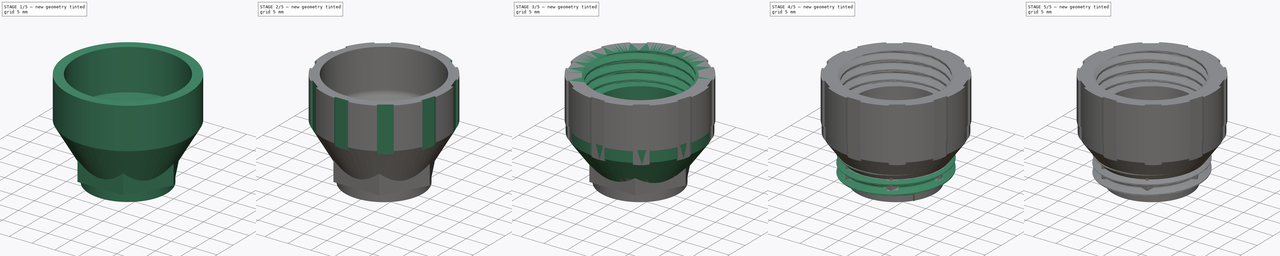
[diagram: build sequence overview — one tinted view per stage of 5, left to right]
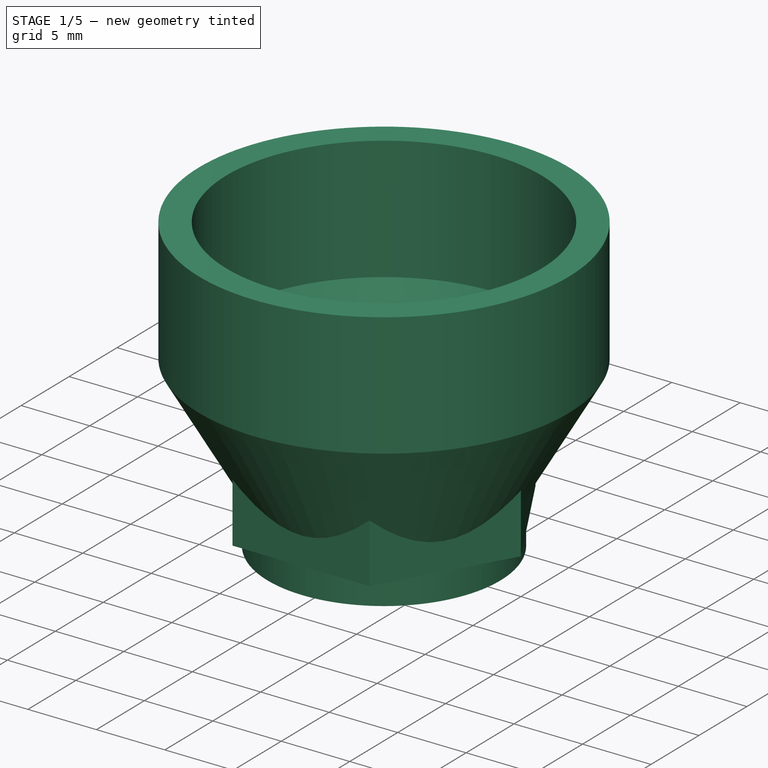
[diagram: stage 1 of 5 — iso view after this stage's code; geometry added in this stage tinted green]
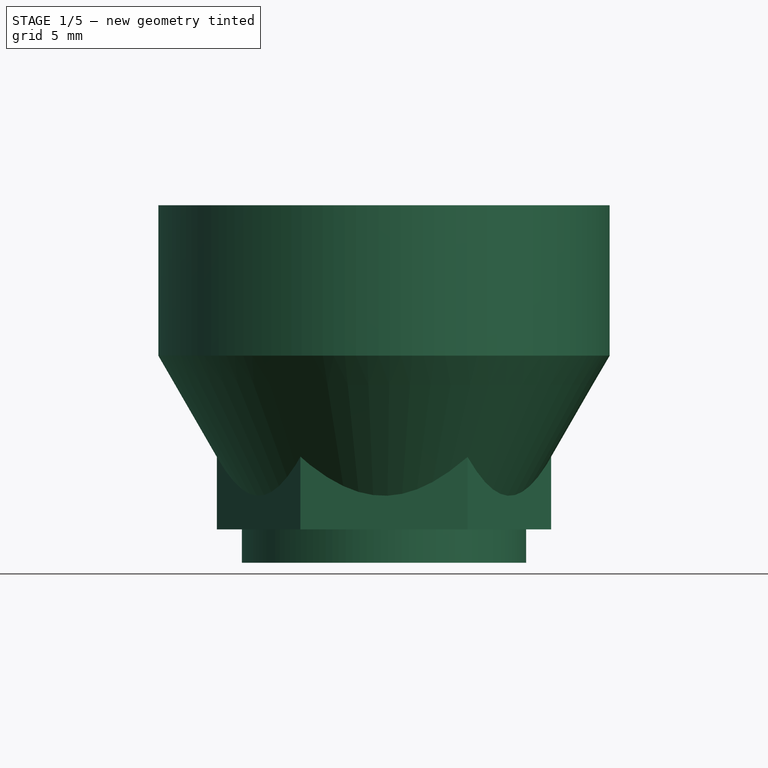
[diagram: stage 1 of 5 — front view after this stage's code; geometry added in this stage tinted green]
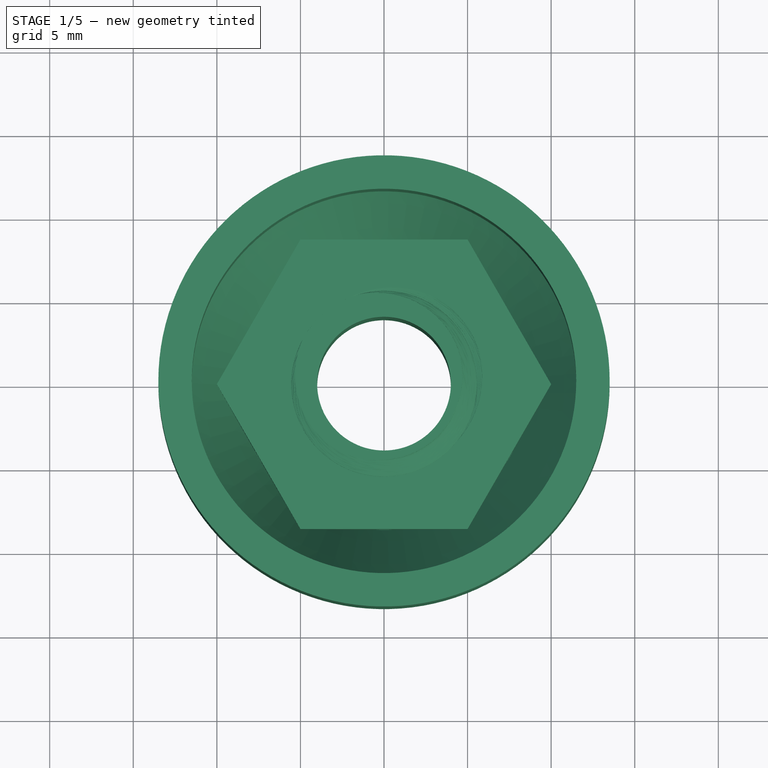
[diagram: stage 1 of 5 — top view after this stage's code; geometry added in this stage tinted green]
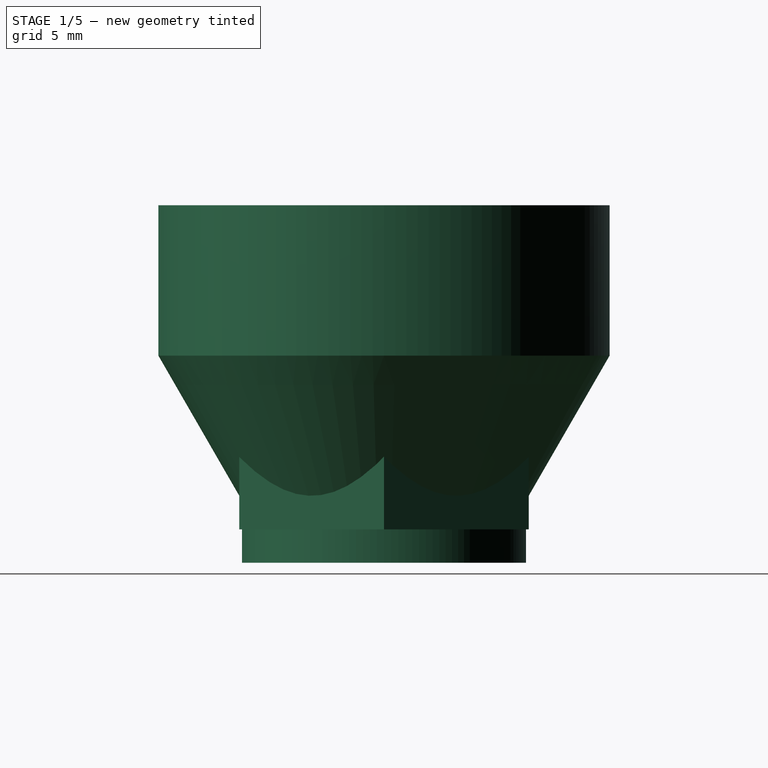
[diagram: stage 1 of 5 — right view after this stage's code; geometry added in this stage tinted green]
FCSTD DOCUMENT  (FreeCAD 0.21R33668 +26 (Git))
Label: power-cable-connector
License: All rights reserved
LicenseURL: http://en.wikipedia.org/wiki/All_rights_reserved
objects: Sketcher::SketchObject×13, App::Part×9, PartDesign::Body×8, PartDesign::Fillet×7, Part::Feature×6, PartDesign::Pad×6, PartDesign::Pocket×6, PartDesign::SubShapeBinder×4, Part::Part2DObjectPython×4, Part::Helix×4, PartDesign::PolarPattern×3, PartDesign::Chamfer×2, App::LinkGroup×2, PartDesign::Revolution×2, PartDesign::AdditivePipe×2, PartDesign::SubtractivePipe×2, Spreadsheet::Sheet×1, PartDesign::Thickness×1, PartDesign::Mirrored×1, PartDesign::FeatureBase×1
note: 100 computed .brp shape members not serialized (recipe doc carries the construction recipe); baked Part::Feature solids carry a one-line shape summary decoded from their .brp

FEATURE [PartDesign::SubShapeBinder] Binder002
  BindCopyOnChange = 0
  BindMode = 0
  ClaimChildren = false
  Context = -> Body004 [Binder002.]
  Fuse = false
  MakeFace = true
  OffsetFill = false
  OffsetIntersection = false
  OffsetJoinType = 0
  OffsetOpenResult = false
  PartialLoad = false
  Relative = false
  _Version = 2
FEATURE [Sketcher::SketchObject] Sketch006
  ExternalGeometry = -> [Binder002]
  FullyConstrained = true
  MapMode = 5
  Placement = pos=(0,0,0) rot=(1,0,0;1.5708rad)
  Support = -> [XZ_Plane010]
  expr: Constraints[16] = <<Values>>.Housing_Male_Thread_Length - 1
  expr: Constraints[19] = <<Values>>.Wall_size
  sketch-geometry (10):
    g0: LineSegment StartX=-7.5 StartY=0 StartZ=0 EndX=-13.5 EndY=10.3923 EndZ=0
    g1: LineSegment StartX=-7.5 StartY=0 StartZ=0 EndX=-5.5 EndY=0 EndZ=0
    g2: LineSegment StartX=-5.5 StartY=0 StartZ=0 EndX=-7.52073 EndY=3.5 EndZ=0
    g3: LineSegment StartX=-7.52073 StartY=3.5 StartZ=0 EndX=-5.52073 EndY=3.5 EndZ=0
    g4: LineSegment StartX=-5.52073 StartY=3.5 StartZ=0 EndX=-5.52073 EndY=5.5 EndZ=0
    g5: LineSegment StartX=-5.52073 StartY=5.5 StartZ=0 EndX=-8.67543 EndY=5.5 EndZ=0
    g6: LineSegment StartX=-8.67543 StartY=5.5 StartZ=0 EndX=-11.5 EndY=10.3923 EndZ=0
    g7: LineSegment StartX=-13.5 StartY=10.3923 StartZ=0 EndX=-13.5 EndY=19.3923 EndZ=0
    g8: LineSegment StartX=-13.5 StartY=19.3923 StartZ=0 EndX=-11.5 EndY=19.3923 EndZ=0
    g9: LineSegment StartX=-11.5 StartY=19.3923 StartZ=0 EndX=-11.5 EndY=10.3923 EndZ=0
  constraints (22):
    c: Coincident(g0,g-5)
    c: Coincident(g0,g-4)
    c: Coincident(g1,g0)
    c: Coincident(g1,g-6)
    c: Coincident(g2,g1)
    c: Coincident(g2,g-7)
    c: Coincident(g3,g2)
    c: Coincident(g3,g-8)
    c: Coincident(g4,g3)
    c: Coincident(g4,g-9)
    c: Coincident(g5,g4)
    c: Coincident(g5,g-10)
    c: Coincident(g6,g5)
    c: Coincident(g6,g-11)
    c: Coincident(g7,g0)
    c: Vertical(g7)
    c: DistanceY(g7,g7) = 9
    c: Coincident(g8,g7)
    c: Horizontal(g8)
    c: DistanceX(g8,g8) = 2
    c: Coincident(g9,g8)
    c: Coincident(g9,g6)
FEATURE [PartDesign::Revolution] Revolution001
  Angle = 360
  Axis = (0,2e-16,1)
  Base = (0,0,0)
  Placement = pos=(0,0,0) rot=(1,0,0;1.5708rad)
  Profile = -> Sketch006
  ReferenceAxis = -> Sketch006 [V_Axis]
FEATURE [PartDesign::Fillet] Fillet001
  Base = -> Revolution001 [Edge16,Edge13]
  BaseFeature = -> Revolution001
  Placement = pos=(0,0,0) rot=(1,0,0;1.5708rad)
  Radius = 0.5
  SupportTransform = false
  UseAllEdges = false
FEATURE [PartDesign::Body] Body004  label="Body_Female"
  Group = -> [Binder002,Sketch006,Revolution001,Fillet001,Fillet002,Fillet003,Sketch010,Pocket005,PolarPattern002,Fillet005,Fillet006]
  Origin = -> Origin010
  Tip = -> Fillet006
FEATURE [App::Part] Part003  label="Housing_F"
  Group = -> [Body005,Body004]
  Origin = -> Origin013
FEATURE [App::Part] Part001  label="Housing_Female"
  Group = -> [LinkGroup,Part003]
  Origin = -> Origin009
  Placement = pos=(0,0,41.6) rot=(0,1,0;3.14159rad)
FEATURE [Part::Part2DObjectPython] VThreadProfile002  # Draft 2D object (typed FeaturePython)
  Area = 78.7647
  Closed = true
  Continuity = C2
  Deviation = 0.1
  Height = 10
  Helix = Helix002
  Instructions = <same value as first occurrence — deduplicated (x4 in doc)>
  InternalOrExternal = 1
  MakeFace = true
  MinorDiameter = 9.2
  Parameterization = 1
  Pitch = 1.75
  Points = (66) [(4.57466,0.441106,0),(4.47538,0.871166,0),(4.34601,1.28924,0),(4.18395,1.69303,0),(3.98893,2.07989,0),(3.76166,2.44714,0),(3.50345,2.79212,0),+59 more]
  Presets = 22
  Quality = 11
  ThreadCount = 5.71429
  Variants = 0
  Version = 1.92
  external2S_data = <same value as first occurrence — deduplicated (x4 in doc)>
  external3S_data = <same value as first occurrence — deduplicated (x4 in doc)>
  external45_data = <same value as first occurrence — deduplicated (x4 in doc)>
  external_data = <same value as first occurrence — deduplicated (x4 in doc)>
  internal2S_data = <same value as first occurrence — deduplicated (x4 in doc)>
  internal3S_data = <same value as first occurrence — deduplicated (x4 in doc)>
  internal45_data = <same value as first occurrence — deduplicated (x4 in doc)>
  internal_data = <same value as first occurrence — deduplicated (x4 in doc)>
  preset_names = <blob: 3959 chars omitted>
  presets_data = <same value as first occurrence — deduplicated (x4 in doc)>
FEATURE [Part::Helix] Helix002
  Angle = 0
  AttacherType = Attacher::AttachEngine3D
  Height = 10
  LocalCoord = 0
  Pitch = 1.75
  Radius = 1
  SegmentLength = 1
  Style = 0
  expr: AttachmentOffset = VThreadProfile002.AttachmentOffset
  expr: Height = VThreadProfile002.ThreadCount * VThreadProfile002.Pitch
  expr: MapMode = VThreadProfile002.MapMode
  expr: MapPathParameter = VThreadProfile002.MapPathParameter
  expr: MapReversed = VThreadProfile002.MapReversed
  expr: Pitch = VThreadProfile002.Pitch
  expr: SegmentLength = 1
  expr: Support = VThreadProfile002.Support
FEATURE [PartDesign::AdditivePipe] AdditivePipe001
  AuxilleryCurvelinear = true
  AuxillerySpineTangent = false
  Binormal = (0,0,0)
  Mode = 2
  Profile = -> VThreadProfile002
  Spine = -> Helix002 [Edge1,Edge2,Edge3,Edge4,Edge5,Edge6]
  SpineTangent = false
  Transformation = 0
  Transition = 0
FEATURE [Sketcher::SketchObject] Sketch011
  FullyConstrained = true
  MapMode = 5
  Placement = pos=(0,0,0) rot=(1,0,0;3.14159rad)
  Support = -> [AdditivePipe001]
  sketch-geometry (1):
    g0: Circle CenterX=0 CenterY=0 CenterZ=0 NormalX=0 NormalY=0 NormalZ=1 AngleXU=0 Radius=8.5
  constraints (2):
    c: Coincident(g0,g-1)
    c: Diameter(g0) = 17
FEATURE [PartDesign::Pad] Pad004
  BaseFeature = -> AdditivePipe001
  Direction = (0,0,-1)
  Length = 2
  Length2 = 10
  Profile = -> Sketch011
  ReferenceAxis = -> Sketch011 [N_Axis]
  Type = 0
FEATURE [Sketcher::SketchObject] Sketch012
  FullyConstrained = true
  MapMode = 5
  Placement = pos=(0,-1e-16,-2) rot=(1,0,0;3.14159rad)
  Support = -> [Pad004]
  sketch-geometry (1):
    g0: Circle CenterX=0 CenterY=0 CenterZ=0 NormalX=0 NormalY=0 NormalZ=1 AngleXU=0 Radius=4
  constraints (2):
    c: Coincident(g0,g-1)
    c: Diameter(g0) = 8
FEATURE [PartDesign::Pocket] Pocket006
  BaseFeature = -> Pad004
  Direction = (0,0,1)
  Length = 5
  Length2 = 5
  Profile = -> Sketch012
  ReferenceAxis = -> Sketch012 [N_Axis]
  Type = 1
FEATURE [PartDesign::Body] Body006  label="Body_Gland"
  Group = -> [VThreadProfile002,Helix002,AdditivePipe001,Sketch011,Pad004,Sketch012,Pocket006]
  Origin = -> Origin015
  Tip = -> Pocket006
FEATURE [Sketcher::SketchObject] Sketch013
  FullyConstrained = true
  MapMode = 5
  Support = -> [XY_Plane016]
  sketch-geometry (7):
    g0: LineSegment StartX=-5 StartY=8.66025 StartZ=0 EndX=-10 EndY=1.00041e-10 EndZ=0
    g1: LineSegment StartX=-10 StartY=1.00041e-10 StartZ=0 EndX=-5 EndY=-8.66025 EndZ=0
    g2: LineSegment StartX=-5 StartY=-8.66025 StartZ=0 EndX=5 EndY=-8.66025 EndZ=0
    g3: LineSegment StartX=5 StartY=-8.66025 StartZ=0 EndX=10 EndY=0 EndZ=0
    g4: LineSegment StartX=10 StartY=0 StartZ=0 EndX=5 EndY=8.66025 EndZ=0
    g5: LineSegment StartX=5 StartY=8.66025 StartZ=0 EndX=-5 EndY=8.66025 EndZ=0
    g6: Circle CenterX=-1e-16 CenterY=0 CenterZ=0 NormalX=0 NormalY=0 NormalZ=1 AngleXU=0 Radius=10
  constraints (16):
    c: Coincident(g0,g1)
    c: Coincident(g1,g2)
    c: Coincident(g2,g3)
    c: Coincident(g3,g4)
    c: Coincident(g4,g5)
    c: Coincident(g5,g0)
    c: Equal(g0, g1-g5) x5
    c: PointOnObject(g0,g6)
    c: PointOnObject(g1,g6)
    c: PointOnObject(g2,g6)
    c: PointOnObject(g3,g6)
    c: PointOnObject(g4,g6)
    c: PointOnObject(g5,g6)
    c: Coincident(g6,g-1)
    c: PointOnObject(g3,g-1)
    c: Diameter(g6) = 20
FEATURE [PartDesign::Pad] Pad005
  Direction = (0,0,1)
  Length = 8
  Length2 = 10
  Profile = -> Sketch013
  ReferenceAxis = -> Sketch013 [N_Axis]
  Type = 0
FEATURE [Part::Part2DObjectPython] VThreadProfile003  # Draft 2D object (typed FeaturePython)
  Area = 94.5514
  Closed = true
  Continuity = C2
  Deviation = 0.1
  Height = 10
  Helix = Helix003
  Instructions = <same value as first occurrence — deduplicated (x4 in doc)>
  InternalOrExternal = 0
  MakeFace = true
  MapMode = 11
  MinorDiameter = 10.106
  Parameterization = 1
  Pitch = 1.75
  Placement = pos=(0,0,8) rot=(0.707107,-0.707107,0;3.14159rad)
  Points = (66) [(5.02967,0.48498,0),(4.9599,0.965482,0),(4.84434,1.43707,0),(4.68405,1.89539,0),(4.48051,2.33621,0),(4.2356,2.75545,0),(3.95158,3.14926,0),+59 more]
  Presets = 22
  Quality = 11
  ThreadCount = 5.71429
  Variants = 0
  Version = 1.92
  external2S_data = <same value as first occurrence — deduplicated (x4 in doc)>
  external3S_data = <same value as first occurrence — deduplicated (x4 in doc)>
  external45_data = <same value as first occurrence — deduplicated (x4 in doc)>
  external_data = <same value as first occurrence — deduplicated (x4 in doc)>
  internal2S_data = <same value as first occurrence — deduplicated (x4 in doc)>
  internal3S_data = <same value as first occurrence — deduplicated (x4 in doc)>
  internal45_data = <same value as first occurrence — deduplicated (x4 in doc)>
  internal_data = <same value as first occurrence — deduplicated (x4 in doc)>
  preset_names = <blob: 3959 chars omitted>
  presets_data = <same value as first occurrence — deduplicated (x4 in doc)>
FEATURE [Part::Helix] Helix003
  Angle = 0
  AttacherType = Attacher::AttachEngine3D
  Height = 10
  LocalCoord = 0
  MapMode = 11
  Pitch = 1.75
  Placement = pos=(0,0,8) rot=(0.707107,-0.707107,0;3.14159rad)
  Radius = 1
  SegmentLength = 1
  Style = 0
  expr: AttachmentOffset = VThreadProfile003.AttachmentOffset
  expr: Height = VThreadProfile003.ThreadCount * VThreadProfile003.Pitch
  expr: MapMode = VThreadProfile003.MapMode
  expr: MapPathParameter = VThreadProfile003.MapPathParameter
  expr: MapReversed = VThreadProfile003.MapReversed
  expr: Pitch = VThreadProfile003.Pitch
  expr: SegmentLength = 1
  expr: Support = VThreadProfile003.Support
FEATURE [PartDesign::SubtractivePipe] SubtractivePipe001
  AuxilleryCurvelinear = true
  AuxillerySpineTangent = false
  BaseFeature = -> Pad005
  Binormal = (0,0,0)
  Mode = 2
  Profile = -> VThreadProfile003
  Spine = -> Helix003
  SpineTangent = false
  Transformation = 0
  Transition = 0
FEATURE [PartDesign::Body] Body007  label="Body_Nut"
  Group = -> [Sketch013,Pad005,VThreadProfile003,Helix003,SubtractivePipe001]
  Origin = -> Origin016
  Tip = -> SubtractivePipe001
FEATURE [App::Part] Part004  label="Cable_Gland"
  Group = -> [Body006,Body007]
  Origin = -> Origin014
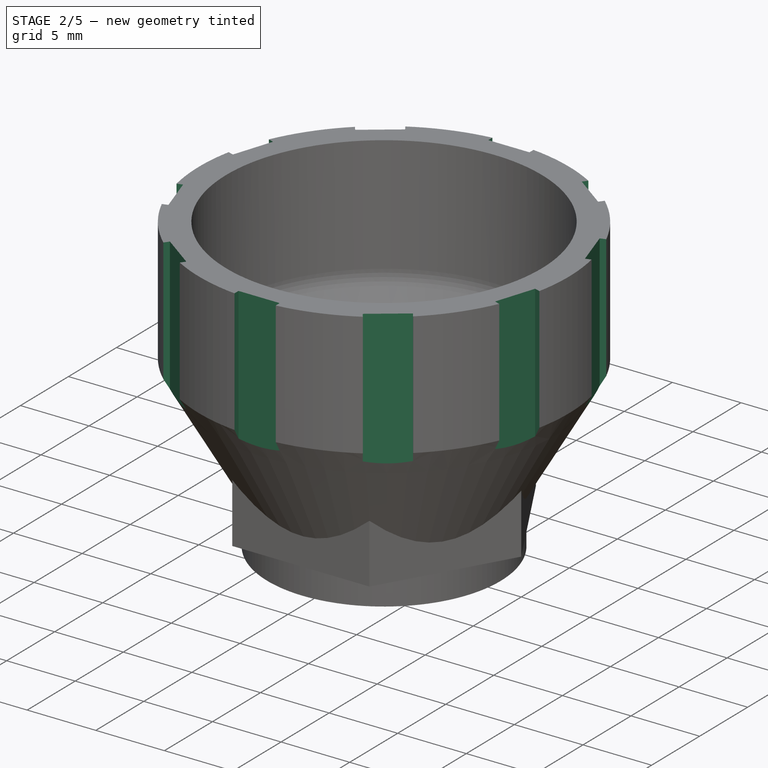
[diagram: stage 2 of 5 — iso view after this stage's code; geometry added in this stage tinted green]
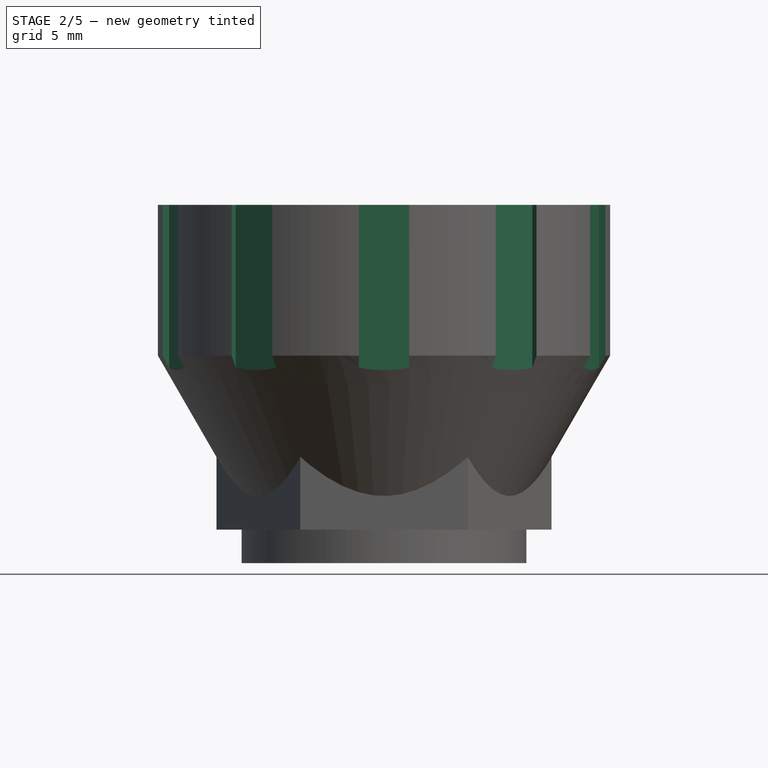
[diagram: stage 2 of 5 — front view after this stage's code; geometry added in this stage tinted green]
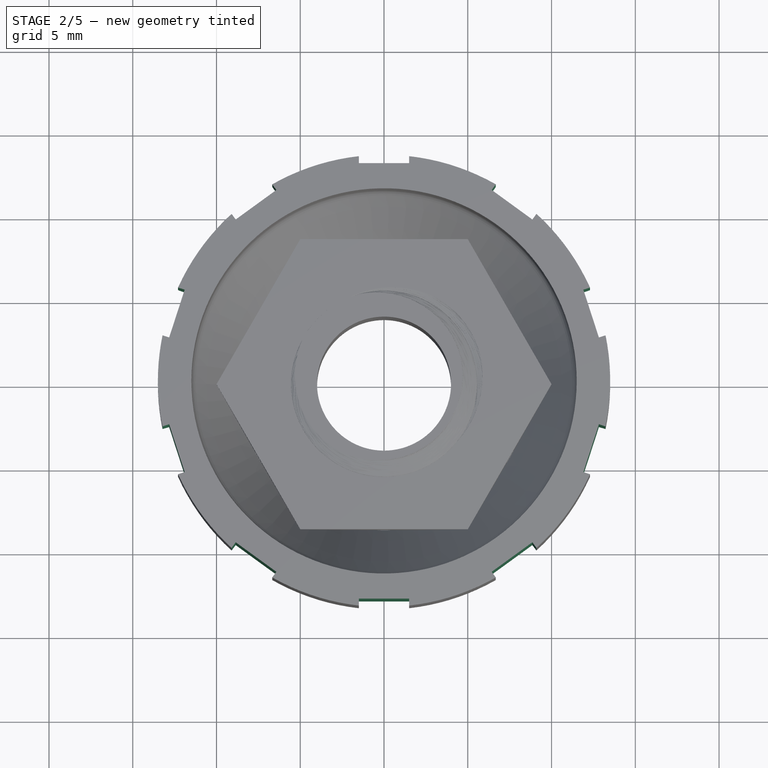
[diagram: stage 2 of 5 — top view after this stage's code; geometry added in this stage tinted green]
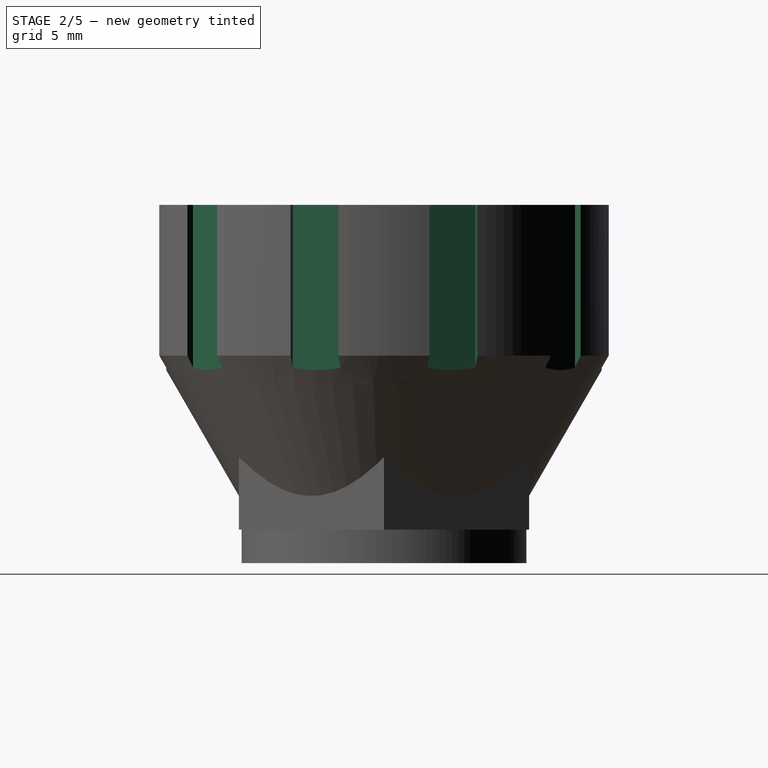
[diagram: stage 2 of 5 — right view after this stage's code; geometry added in this stage tinted green]
FEATURE [PartDesign::Fillet] Fillet002
  Base = -> Fillet001 [Edge7]
  BaseFeature = -> Fillet001
  Placement = pos=(0,0,0) rot=(1,0,0;1.5708rad)
  Radius = 2
  SupportTransform = false
  UseAllEdges = false
FEATURE [PartDesign::Fillet] Fillet003
  Base = -> Fillet002 [Edge13]
  BaseFeature = -> Fillet002
  Placement = pos=(0,0,0) rot=(1,0,0;1.5708rad)
  Radius = 1.5
  SupportTransform = false
  UseAllEdges = false
FEATURE [PartDesign::Body] Body005  label="Body_Female_Thread"
  Group = -> [Binder003,Sketch008,Pad003,VThreadProfile001,Helix001,SubtractivePipe,Sketch009,Pocket004,PolarPattern001]
  Origin = -> Origin011
  Tip = -> PolarPattern001
FEATURE [Sketcher::SketchObject] Sketch010
  ExternalGeometry = -> [Fillet003]
  FullyConstrained = true
  MapMode = 5
  Placement = pos=(0,4.3e-15,19.3923) rot=(0,0,1;3.14159rad)
  Support = -> [Fillet003]
  sketch-geometry (5):
    g0: LineSegment StartX=-4 StartY=13.5 StartZ=0 EndX=4 EndY=13.5 EndZ=0
    g1: LineSegment StartX=-1.5 StartY=14 StartZ=0 EndX=1.5 EndY=14 EndZ=0
    g2: LineSegment StartX=1.5 StartY=14 StartZ=0 EndX=1.5 EndY=13 EndZ=0
    g3: LineSegment StartX=1.5 StartY=13 StartZ=0 EndX=-1.5 EndY=13 EndZ=0
    g4: LineSegment StartX=-1.5 StartY=13 StartZ=0 EndX=-1.5 EndY=14 EndZ=0
  constraints (13):
    c: DistanceX(g0,g0) = 8
    c: Symmetric(g0,g0,g-2)
    c: Tangent(g0,g-3)
    c: Coincident(g1,g2)
    c: Coincident(g2,g3)
    c: Coincident(g3,g4)
    c: Coincident(g4,g1)
    c: Horizontal(g3)
    c: Vertical(g2)
    c: DistanceX(g1,g1) = 3
    c: DistanceY(g4,g4) = 1
    c: Symmetric(g1,g3,g0)
    c: Symmetric(g1,g1,g-2)
FEATURE [PartDesign::Pocket] Pocket005
  BaseFeature = -> Fillet003
  Direction = (0,-2e-16,-1)
  Length = 5
  Length2 = 5
  Placement = pos=(0,0,0) rot=(1,0,0;1.5708rad)
  Profile = -> Sketch010
  ReferenceAxis = -> Sketch010 [N_Axis]
  Type = 1
FEATURE [PartDesign::PolarPattern] PolarPattern002
  Angle = 360
  Axis = -> Sketch010 [N_Axis]
  BaseFeature = -> Pocket005
  Occurrences = 10
  Originals = -> [Pocket005]
  Placement = pos=(0,0,0) rot=(1,0,0;1.5708rad)
FEATURE [PartDesign::Fillet] Fillet005
  Base = -> PolarPattern002 [Edge136,Edge134]
  BaseFeature = -> PolarPattern002
  Placement = pos=(0,0,0) rot=(1,0,0;1.5708rad)
  Radius = 0.5
  SupportTransform = false
  UseAllEdges = false
FEATURE [PartDesign::Fillet] Fillet006
  Base = -> Fillet005 [Edge7]
  BaseFeature = -> Fillet005
  Placement = pos=(0,0,0) rot=(1,0,0;1.5708rad)
  Radius = 2
  SupportTransform = false
  UseAllEdges = false
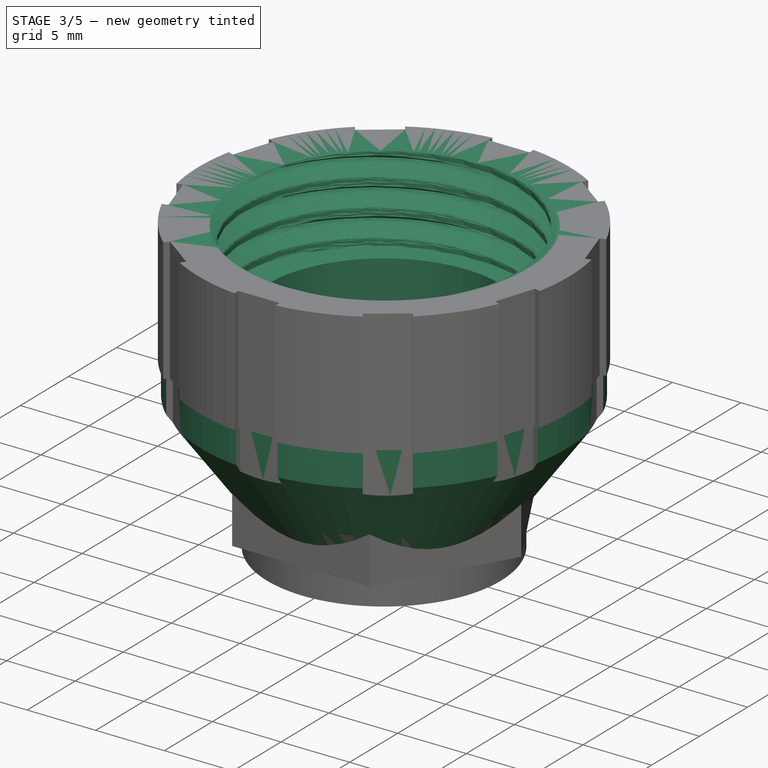
[diagram: stage 3 of 5 — iso view after this stage's code; geometry added in this stage tinted green]
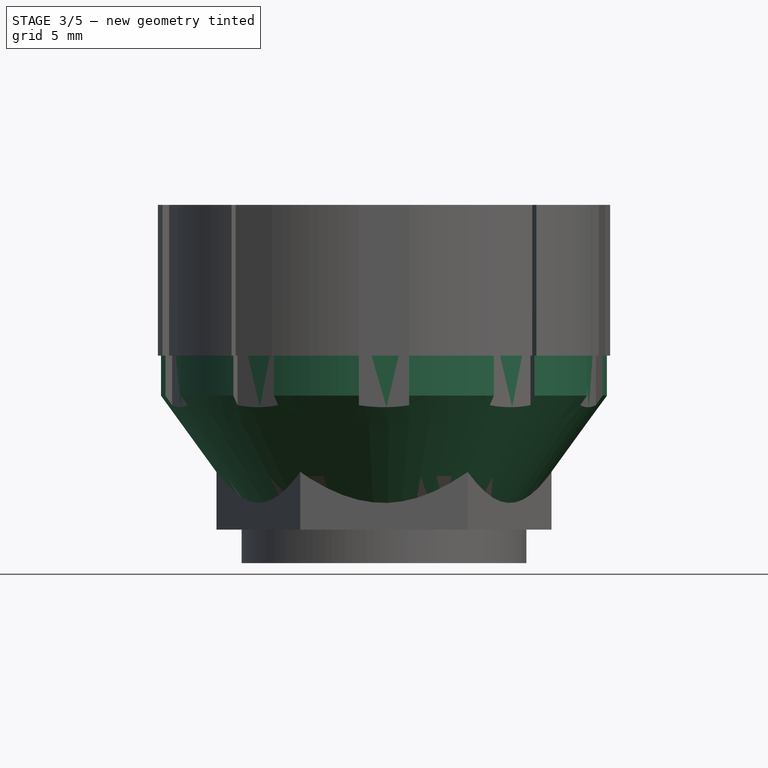
[diagram: stage 3 of 5 — front view after this stage's code; geometry added in this stage tinted green]
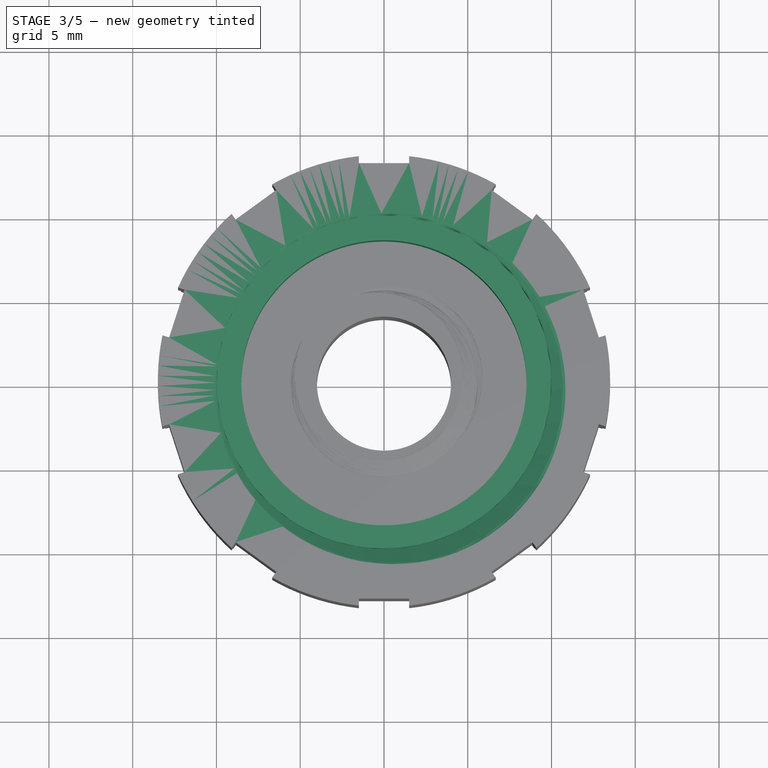
[diagram: stage 3 of 5 — top view after this stage's code; geometry added in this stage tinted green]
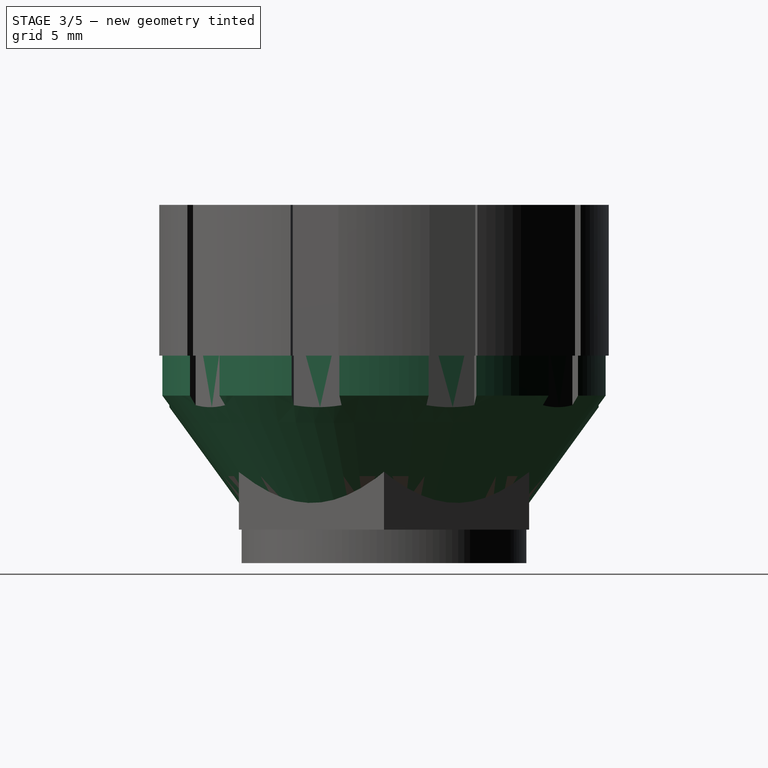
[diagram: stage 3 of 5 — right view after this stage's code; geometry added in this stage tinted green]
FEATURE [PartDesign::Body] Body001  label="Body_M"
  Group = -> [Clone]
  Origin = -> Origin005
  Placement = pos=(0,0,36) rot=(0.999985,0.005555,0;3.14159rad)
  Tip = -> Clone
FEATURE [App::Part] ASSEMBLY001  label="XT30-M"
  Group = -> [XT30UPB_M,Body001]
  Origin = -> Origin003
  Placement = pos=(0,0,32.5) rot=(90,0,0;3.14159rad)
FEATURE [App::LinkGroup] LinkGroup  label="XT30_M"
  ElementList = -> [Body001,ASSEMBLY001]
  LinkMode = 1
  Placement = pos=(0,0,41.5) rot=(0,1,0;3.14159rad)
FEATURE [App::LinkGroup] LinkGroup001  label="XT30_F"
  ElementList = -> [ASSEMBLY,Body]
  LinkMode = 0
  Placement = pos=(0,0,5.5) rot=(0,0,1;0rad)
  expr: .Placement.Base.z = <<Values>>.Housing_Bottom_Stopper_Distance
FEATURE [PartDesign::SubShapeBinder] Binder001
  BindCopyOnChange = 0
  BindMode = 0
  ClaimChildren = false
  Context = -> Part [Body002.Binder001.]
  Fuse = false
  MakeFace = true
  OffsetFill = false
  OffsetIntersection = false
  OffsetJoinType = 0
  OffsetOpenResult = false
  PartialLoad = false
  Relative = true
  Support = -> [Body[Chamfer001.Face4,Chamfer001.Face1,Chamfer001.Face10]]
  _Version = 2
FEATURE [Sketcher::SketchObject] Sketch003
  FullyConstrained = true
  MapMode = 5
  Placement = pos=(0,0,0) rot=(1,0,0;1.5708rad)
  Support = -> [XZ_Plane007]
  expr: Constraints[13] = <<Values>>.Wall_size
  expr: Constraints[1] = <<Values>>.Housing_Cable_Hole_Radius
  expr: Constraints[23] = <<Values>>.Wall_size
  expr: Constraints[2] = <<Values>>.Housing_Male_Length
  expr: Constraints[7] = <<Values>>.Wall_size
  sketch-geometry (13):
    g0: LineSegment StartX=-5.5 StartY=0 StartZ=0 EndX=-7.52073 EndY=3.5 EndZ=0
    g1: GeomPoint X=-11.3123 Y=13 Z=0
    g2: LineSegment StartX=-5.5 StartY=0 StartZ=0 EndX=0 EndY=0 EndZ=0
    g3: LineSegment StartX=-11.3123 StartY=13 StartZ=0 EndX=-13.3123 EndY=13 EndZ=0
    g4: LineSegment StartX=-13.3123 StartY=13 StartZ=0 EndX=-13.3123 EndY=8 EndZ=0
    g5: LineSegment StartX=-13.3123 StartY=8 StartZ=0 EndX=-7.5 EndY=0 EndZ=0
    g6: LineSegment StartX=-7.5 StartY=0 StartZ=0 EndX=-5.5 EndY=0 EndZ=0
    g7: LineSegment StartX=-11.3123 StartY=13 StartZ=0 EndX=-8.51234 EndY=13 EndZ=0
    g8: LineSegment StartX=-8.51234 StartY=13 StartZ=0 EndX=-8.51234 EndY=8 EndZ=0
    g9: LineSegment StartX=-7.52073 StartY=3.5 StartZ=0 EndX=-5.52073 EndY=3.5 EndZ=0
    g10: LineSegment StartX=-8.51234 StartY=5.5 StartZ=0 EndX=-5.52073 EndY=5.5 EndZ=0
    g11: LineSegment StartX=-5.52073 StartY=5.5 StartZ=0 EndX=-5.52073 EndY=3.5 EndZ=0
    g12: LineSegment StartX=-8.51234 StartY=8 StartZ=0 EndX=-8.51234 EndY=5.5 EndZ=0
  constraints (36):
    c: PointOnObject(g0,g-1)
    c: DistanceX(g0,g-1) = 5.5
    c: DistanceY(g-1,g1) = 13
    c: Coincident(g2,g0)
    c: Coincident(g2,g-1)
    c: Angle(g2,g0) = 2.0944
    c: Horizontal(g3)
    c: DistanceX(g3,g3) = 2
    c: Coincident(g4,g3)
    c: Vertical(g4)
    c: Coincident(g6,g5)
    c: Coincident(g6,g0)
    c: PointOnObject(g5,g-1)
    c: DistanceX(g6,g6) = 2
    c: Horizontal(g7)
    c: Coincident(g7,g3)
    c: Coincident(g3,g1)
    c: Coincident(g8,g7)
    c: Vertical(g8)
    c: Horizontal(g9)
    c: DistanceX(g9,g9) = 2
    c: DistanceY(g2,g9) = 3.5
    c: Horizontal(g10)
    c: DistanceY(g9,g10) = 2
    c: Coincident(g11,g10)
    c: Coincident(g11,g9)
    c: Vertical(g11)
    c: Coincident(g0,g9)
    c: Horizontal(g8,g4)
    c: DistanceX(g7,g7) = 2.8
    c: Coincident(g5,g4)
    c: DistanceY(g4,g4) = 5
    c: DistanceX(g10,g8) = 0
    c: Coincident(g12,g8)
    c: Coincident(g12,g10)
    c: Angle(g-1,g5) = 2.19911
FEATURE [PartDesign::Revolution] Revolution
  Angle = 360
  Axis = (0,-2e-16,1)
  Base = (0,0,0)
  Placement = pos=(0,0,0) rot=(1,0,0;1.5708rad)
  Profile = -> Sketch003
  ReferenceAxis = -> Sketch003 [V_Axis]
FEATURE [Sketcher::SketchObject] Sketch005
  ExternalGeometry = -> [Revolution]
  FullyConstrained = true
  MapMode = 5
  Placement = pos=(0,-2.9e-15,13) rot=(0,0,1;3.14159rad)
  Support = -> [Revolution]
  sketch-geometry (5):
    g0: LineSegment StartX=-1.5 StartY=13.8123 StartZ=0 EndX=1.5 EndY=13.8123 EndZ=0
    g1: LineSegment StartX=1.5 StartY=13.8123 StartZ=0 EndX=1.5 EndY=12.8123 EndZ=0
    g2: LineSegment StartX=1.5 StartY=12.8123 StartZ=0 EndX=-1.5 EndY=12.8123 EndZ=0
    g3: LineSegment StartX=-1.5 StartY=12.8123 StartZ=0 EndX=-1.5 EndY=13.8123 EndZ=0
    g4: LineSegment StartX=-4 StartY=13.3123 StartZ=0 EndX=4 EndY=13.3123 EndZ=0
  constraints (13):
    c: Coincident(g0,g1)
    c: Coincident(g1,g2)
    c: Coincident(g2,g3)
    c: Coincident(g3,g0)
    c: Horizontal(g2)
    c: Vertical(g1)
    c: Symmetric(g0,g0,g-2)
    c: DistanceX(g0,g0) = 3
    c: DistanceY(g3,g3) = 1
    c: Tangent(g4,g-3)
    c: DistanceX(g4,g4) = 8
    c: Symmetric(g0,g2,g4)
    c: Symmetric(g4,g4,g-2)
FEATURE [PartDesign::Pocket] Pocket002
  BaseFeature = -> Revolution
  Direction = (0,2e-16,-1)
  Length = 5
  Length2 = 5
  Placement = pos=(0,0,0) rot=(1,0,0;1.5708rad)
  Profile = -> Sketch005
  ReferenceAxis = -> Sketch005 [N_Axis]
  Type = 1
FEATURE [PartDesign::PolarPattern] PolarPattern
  Angle = 360
  Axis = -> Sketch005 [N_Axis]
  BaseFeature = -> Pocket002
  Occurrences = 10
  Originals = -> [Pocket002]
  Placement = pos=(0,0,0) rot=(1,0,0;1.5708rad)
FEATURE [PartDesign::Body] Body003  label="Body_Male_Thread"
  Group = -> [VThreadProfile,Helix,AdditivePipe,Sketch007,Pocket003]
  Origin = -> Origin008
  Placement = pos=(0,0,13) rot=(0,0,1;0rad)
  Tip = -> Pocket003
  expr: .Placement.Base.z = <<Values>>.Housing_Male_Thread_Bottom_Z
FEATURE [PartDesign::SubShapeBinder] Binder003
  BindCopyOnChange = 0
  BindMode = 0
  ClaimChildren = false
  Context = -> Part001 [Body005.Binder003.]
  Fuse = false
  MakeFace = true
  OffsetFill = false
  OffsetIntersection = false
  OffsetJoinType = 0
  OffsetOpenResult = false
  PartialLoad = false
  Relative = true
  Support = -> [Body004[Revolution001.Face3]]
  _Version = 2
FEATURE [Sketcher::SketchObject] Sketch008
  ExternalGeometry = -> [Binder003]
  FullyConstrained = true
  MapMode = 5
  Placement = pos=(0,4.3e-15,19.3923) rot=(0,0,1;0rad)
  Support = -> [Binder003]
  sketch-geometry (1):
    g0: Circle CenterX=0 CenterY=0 CenterZ=0 NormalX=0 NormalY=0 NormalZ=1 AngleXU=0 Radius=13.5
  constraints (2):
    c: Coincident(g0,g-3)
    c: Equal(g0,g-3)
FEATURE [PartDesign::Pad] Pad003
  Direction = (0,2e-16,1)
  Length = 9
  Length2 = 10
  Profile = -> Sketch008
  ReferenceAxis = -> Sketch008 [N_Axis]
  Reversed = true
  Type = 0
  expr: Length = <<Values>>.Housing_Male_Thread_Length - 1
FEATURE [Part::Part2DObjectPython] VThreadProfile001  # Draft 2D object (typed FeaturePython)
  Area = 345.67
  Closed = true
  Continuity = C2
  Deviation = 0.1
  Height = 10
  Helix = Helix001
  Instructions = <same value as first occurrence — deduplicated (x4 in doc)>
  InternalOrExternal = 0
  MakeFace = true
  MapMode = 5
  MinorDiameter = 20
  Parameterization = 1
  Pitch = 2
  Placement = pos=(0,5.9e-15,19.3923) rot=(0,1,0;3.14159rad)
  Points = (66) [(9.95383,0.959786,0),(9.81576,1.91071,0),(9.58706,2.84399,0),(9.26984,3.75102,0),(8.86702,4.62341,0),(8.38234,5.45311,0),(7.82026,6.23246,0),+59 more]
  Presets = 0
  Quality = 11
  Support = -> [Pad003]
  ThreadCount = 5
  Variants = 0
  Version = 1.92
  external2S_data = <same value as first occurrence — deduplicated (x4 in doc)>
  external3S_data = <same value as first occurrence — deduplicated (x4 in doc)>
  external45_data = <same value as first occurrence — deduplicated (x4 in doc)>
  external_data = <same value as first occurrence — deduplicated (x4 in doc)>
  internal2S_data = <same value as first occurrence — deduplicated (x4 in doc)>
  internal3S_data = <same value as first occurrence — deduplicated (x4 in doc)>
  internal45_data = <same value as first occurrence — deduplicated (x4 in doc)>
  internal_data = <same value as first occurrence — deduplicated (x4 in doc)>
  preset_names = <blob: 3959 chars omitted>
  presets_data = <same value as first occurrence — deduplicated (x4 in doc)>
  expr: Height = <<Values>>.Housing_Male_Thread_Length
  expr: MinorDiameter = <<Values>>.Housing_Thread_Min_Diameter
FEATURE [Part::Helix] Helix001
  Angle = 0
  AttacherType = Attacher::AttachEngine3D
  Height = 10
  LocalCoord = 0
  MapMode = 5
  Pitch = 2
  Placement = pos=(0,5.9e-15,19.3923) rot=(0,1,0;3.14159rad)
  Radius = 1
  SegmentLength = 1
  Style = 0
  Support = -> [Pad003]
  expr: AttachmentOffset = VThreadProfile001.AttachmentOffset
  expr: Height = VThreadProfile001.ThreadCount * VThreadProfile001.Pitch
  expr: MapMode = VThreadProfile001.MapMode
  expr: MapPathParameter = VThreadProfile001.MapPathParameter
  expr: MapReversed = VThreadProfile001.MapReversed
  expr: Pitch = VThreadProfile001.Pitch
  expr: SegmentLength = 1
  expr: Support = VThreadProfile001.Support
FEATURE [PartDesign::SubtractivePipe] SubtractivePipe
  AuxilleryCurvelinear = true
  AuxillerySpineTangent = false
  BaseFeature = -> Pad003
  Binormal = (0,0,0)
  Mode = 2
  Profile = -> VThreadProfile001
  Spine = -> Helix001 [Edge1,Edge2,Edge3,Edge4,Edge5]
  SpineTangent = false
  Transformation = 0
  Transition = 0
FEATURE [PartDesign::Body] Body002  label="Body_Male"
  Group = -> [Binder001,Sketch003,Revolution,Sketch005,Pocket002,PolarPattern,Fillet,Fillet004]
  Origin = -> Origin007
  Tip = -> Fillet004
FEATURE [App::Part] Part002  label="Housing_M"
  Group = -> [Body002,Body003]
  Origin = -> Origin012
FEATURE [App::Part] Part  label="Housing_Male"
  Group = -> [LinkGroup001,Part002]
  Origin = -> Origin006
FEATURE [Sketcher::SketchObject] Sketch009
  ExternalGeometry = -> [SubtractivePipe]
  FullyConstrained = true
  MapMode = 5
  Placement = pos=(0,5.9e-15,19.3923) rot=(0,0,1;0rad)
  Support = -> [SubtractivePipe]
  sketch-geometry (5):
    g0: LineSegment StartX=-1.5 StartY=14 StartZ=0 EndX=1.5 EndY=14 EndZ=0
    g1: LineSegment StartX=1.5 StartY=14 StartZ=0 EndX=1.5 EndY=13 EndZ=0
    g2: LineSegment StartX=1.5 StartY=13 StartZ=0 EndX=-1.5 EndY=13 EndZ=0
    g3: LineSegment StartX=-1.5 StartY=13 StartZ=0 EndX=-1.5 EndY=14 EndZ=0
    g4: LineSegment StartX=-4 StartY=13.5 StartZ=0 EndX=4 EndY=13.5 EndZ=0
  constraints (13):
    c: Coincident(g0,g1)
    c: Coincident(g1,g2)
    c: Coincident(g2,g3)
    c: Coincident(g3,g0)
    c: Horizontal(g2)
    c: Vertical(g1)
    c: Symmetric(g4,g4,g-2)
    c: DistanceX(g4,g4) = 8
    c: Tangent(g4,g-3)
    c: DistanceY(g3,g3) = 1
    c: Symmetric(g0,g2,g4)
    c: DistanceX(g0,g0) = 3
    c: Symmetric(g0,g0,g-2)
FEATURE [PartDesign::Pocket] Pocket004
  BaseFeature = -> SubtractivePipe
  Direction = (0,-3e-16,-1)
  Length = 5
  Length2 = 5
  Profile = -> Sketch009
  ReferenceAxis = -> Sketch009 [N_Axis]
  Type = 1
FEATURE [PartDesign::PolarPattern] PolarPattern001
  Angle = 360
  Axis = -> Sketch009 [N_Axis]
  BaseFeature = -> Pocket004
  Occurrences = 10
  Originals = -> [Pocket004]
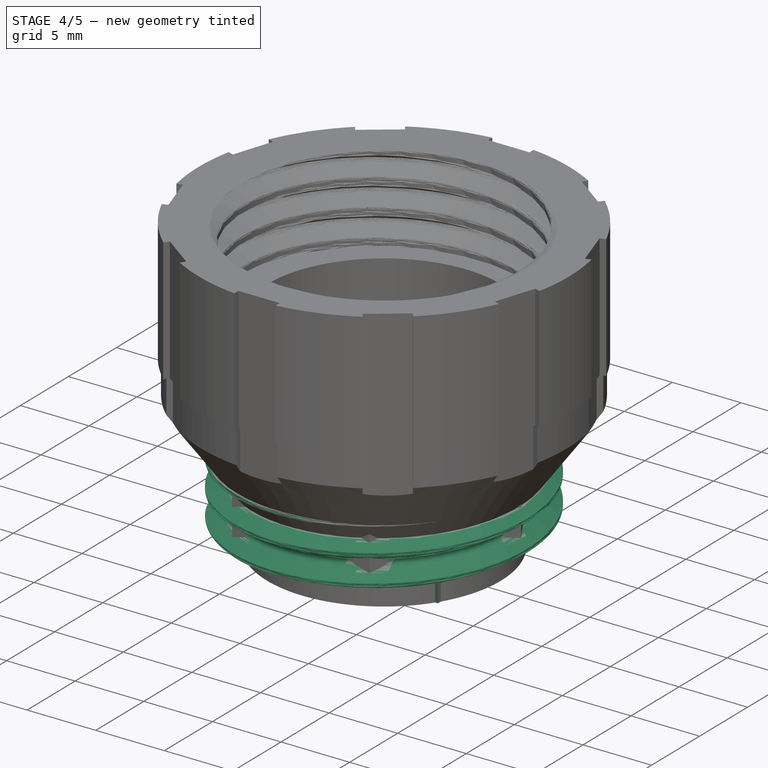
[diagram: stage 4 of 5 — iso view after this stage's code; geometry added in this stage tinted green]
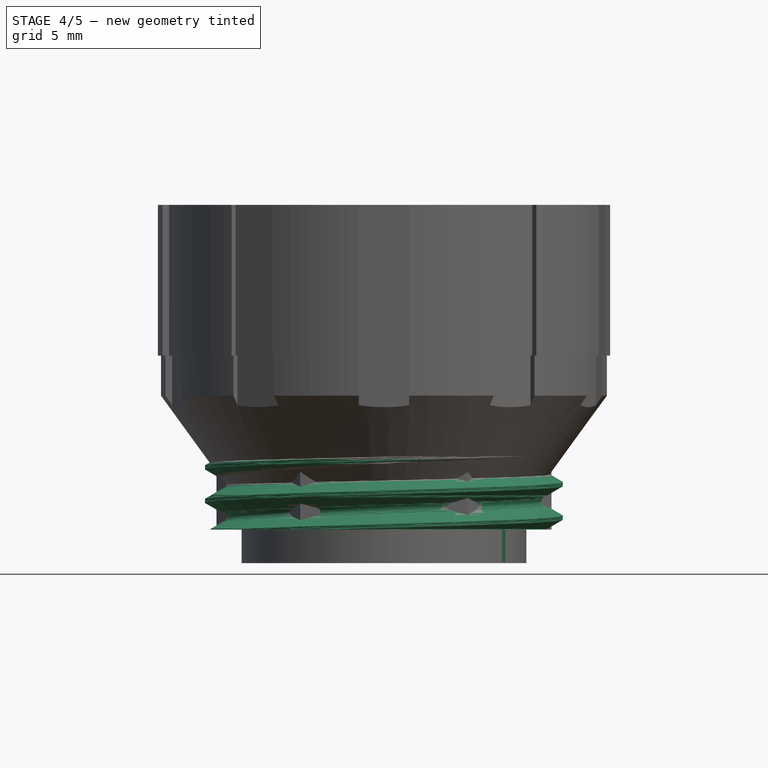
[diagram: stage 4 of 5 — front view after this stage's code; geometry added in this stage tinted green]
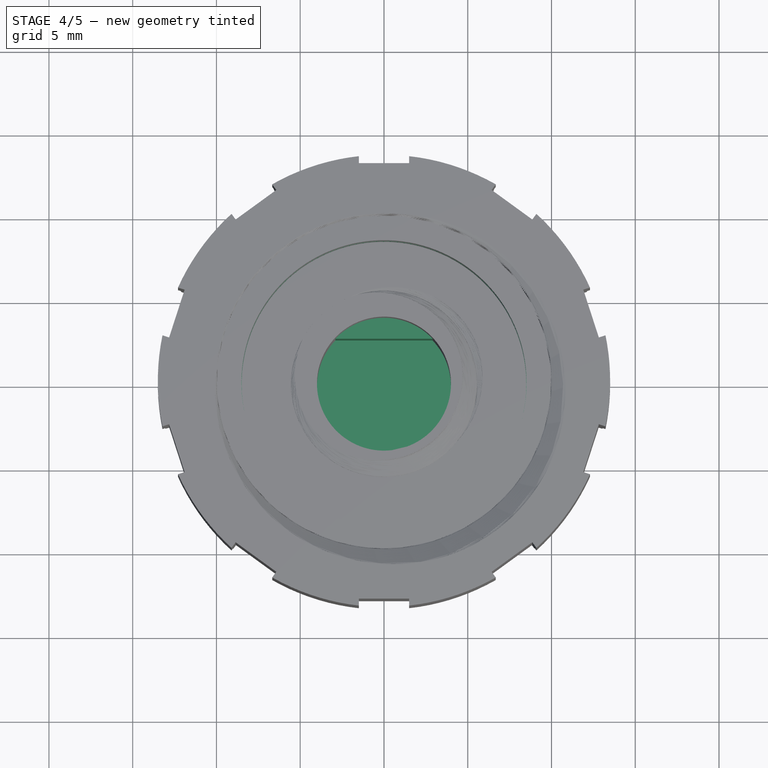
[diagram: stage 4 of 5 — top view after this stage's code; geometry added in this stage tinted green]
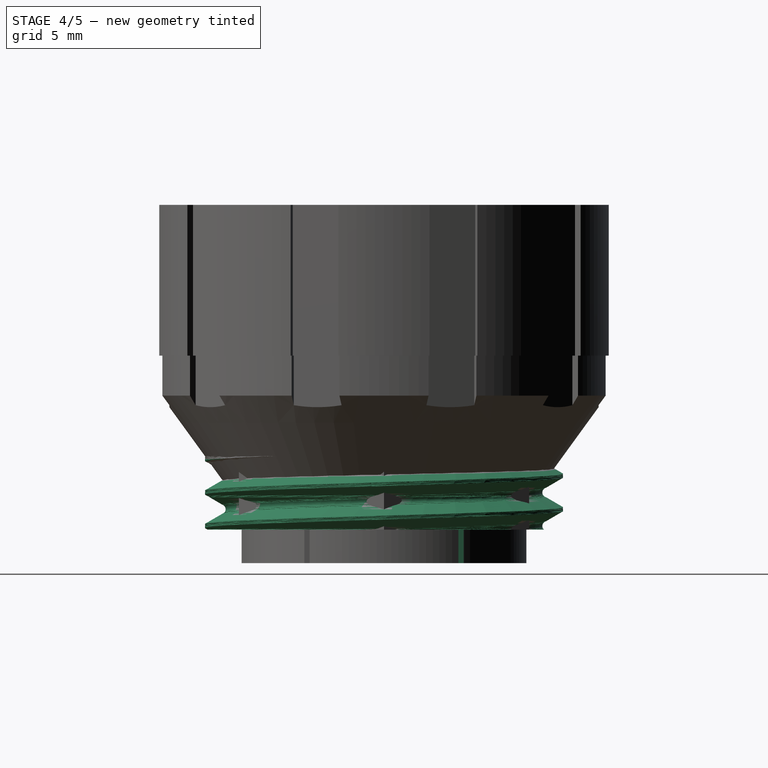
[diagram: stage 4 of 5 — right view after this stage's code; geometry added in this stage tinted green]
FEATURE [Part::Feature] Part__Feature  label="XT30UPB-F"
  shape: bbox 2.4 x 2.4 x 11.3 mm, 9 faces (baked)
FEATURE [Part::Feature] Part__Feature001  label="XT30UPB-F001"
  shape: bbox 2.4 x 2.4 x 11.3 mm, 9 faces (baked)
FEATURE [Part::Feature] Part__Feature002  label="XT30UPB-F002"
  shape: bbox 10.36 x 5.53 x 9.6 mm, 149 faces (baked)
FEATURE [App::Part] XT30UPB_F  label="XT30UPB-F003"
  Group = -> [Part__Feature,Part__Feature001,Part__Feature002]
  Origin = -> Origin
FEATURE [App::Part] ASSEMBLY  label="XT30-F"
  Group = -> [XT30UPB_F]
  Origin = -> Origin001
  Placement = pos=(0,0,5) rot=(1,0,0;0rad)
FEATURE [Part::Feature] Part__Feature003  label="XT30UPB-M"
  shape: bbox 3.129 x 3.508 x 12.2 mm, 22 faces (baked)
FEATURE [Part::Feature] Part__Feature004  label="XT30UPB-M001"
  shape: bbox 3.129 x 3.508 x 12.2 mm, 22 faces (baked)
FEATURE [Part::Feature] Part__Feature005  label="XT30UPB-M002"
  shape: bbox 10.36 x 5.53 x 10.7 mm, 111 faces (baked)
FEATURE [App::Part] XT30UPB_M  label="XT30UPB-M003"
  Group = -> [Part__Feature003,Part__Feature004,Part__Feature005]
  Origin = -> Origin002
FEATURE [PartDesign::SubShapeBinder] Binder
  BindCopyOnChange = 0
  BindMode = 2
  ClaimChildren = false
  Fuse = false
  MakeFace = true
  OffsetFill = false
  OffsetIntersection = false
  OffsetJoinType = 0
  OffsetOpenResult = false
  PartialLoad = false
  Relative = true
  _Version = 2
FEATURE [Sketcher::SketchObject] Sketch
  ExternalGeometry = -> [Binder]
  FullyConstrained = true
  MapMode = 5
  Support = -> [XY_Plane004]
  expr: Constraints[1] = <<Values>>.Tolerance
  expr: Constraints[2] = <<Values>>.Tolerance
  expr: Constraints[5] = <<Values>>.Tolerance
  expr: Constraints[9] = <<Values>>.Tolerance
  sketch-geometry (13):
    g0: LineSegment StartX=-3.02915 StartY=2.75 StartZ=0 EndX=5.25 EndY=2.75 EndZ=0
    g1: ArcOfCircle CenterX=-3.02915 CenterY=0.6 CenterZ=0 NormalX=0 NormalY=0 NormalZ=1 AngleXU=0 Radius=2.15 StartAngle=1.5708 EndAngle=2.32548
    g2: ArcOfCircle CenterX=-3.1 CenterY=0.52915 CenterZ=0 NormalX=0 NormalY=0 NormalZ=1 AngleXU=0 Radius=2.1554 StartAngle=2.279 EndAngle=2.44264
    g3: ArcOfCircle CenterX=-3.1 CenterY=0.52915 CenterZ=0 NormalX=0 NormalY=0 NormalZ=1 AngleXU=0 Radius=2.1554 StartAngle=2.44264 EndAngle=3.14159
    g4: LineSegment StartX=-5.2554 StartY=0.52915 StartZ=0 EndX=-5.2554 EndY=0 EndZ=0
    g5: LineSegment StartX=-7.5 StartY=0 StartZ=0 EndX=7.5 EndY=0 EndZ=0
    g6: LineSegment StartX=5.25 StartY=2.75 StartZ=0 EndX=5.25 EndY=0 EndZ=0
    g7: LineSegment StartX=-5.2554 StartY=-0.52915 StartZ=0 EndX=-5.2554 EndY=0 EndZ=0
    g8: ArcOfCircle CenterX=-3.1 CenterY=-0.52915 CenterZ=0 NormalX=0 NormalY=0 NormalZ=1 AngleXU=0 Radius=2.1554 StartAngle=3.14159 EndAngle=3.84054
    g9: ArcOfCircle CenterX=-3.1 CenterY=-0.52915 CenterZ=0 NormalX=0 NormalY=0 NormalZ=1 AngleXU=0 Radius=2.1554 StartAngle=3.84054 EndAngle=4.00419
    g10: ArcOfCircle CenterX=-3.02915 CenterY=-0.6 CenterZ=0 NormalX=0 NormalY=0 NormalZ=1 AngleXU=0 Radius=2.15 StartAngle=3.95771 EndAngle=4.71239
    g11: LineSegment StartX=-3.02915 StartY=-2.75 StartZ=0 EndX=5.25 EndY=-2.75 EndZ=0
    g12: LineSegment StartX=5.25 StartY=-2.75 StartZ=0 EndX=5.25 EndY=0 EndZ=0
  constraints (38):
    c: Horizontal(g0)
    c: DistanceY(g-4,g0) = 0.15
    c: DistanceX(g-12,g0) = 0.15
    c: Coincident(g1,g-4)
    c: Coincident(g1,g0)
    c: DistanceX(g1,g-5) = 0.15
    c: DistanceX(g0,g-4) = 0
    c: Coincident(g2,g-6)
    c: Coincident(g2,g1)
    c: DistanceX(g2,g-6) = 0.15
    c: Coincident(g3,g2)
    c: Coincident(g3,g2)
    c: Horizontal(g3,g-7)
    c: Coincident(g4,g3)
    c: Vertical(g4)
    c: PointOnObject(g5,g-1)
    c: DistanceX(g5,g5) = 15
    c: Symmetric(g5,g5,g-2)
    c: PointOnObject(g4,g5)
    c: Coincident(g6,g0)
    c: Vertical(g6)
    c: PointOnObject(g6,g5)
    c: Coincident(g10,g11)
    c: Coincident(g9,g10)
    c: Coincident(g8,g9)
    c: Coincident(g8,g9)
    c: Coincident(g7,g8)
    c: Coincident(g12,g11)
    c: Vertical(g12)
    c: Equal(g12,g6)
    c: Coincident(g12,g6)
    c: Perpendicular(g12,g11)
    c: Equal(g11,g0)
    c: Symmetric(g7,g3,g5)
    c: Coincident(g4,g7)
    c: Symmetric(g8,g2,g5)
    c: Symmetric(g9,g1,g-1)
    c: Equal(g10,g1)
FEATURE [Spreadsheet::Sheet] Spreadsheet  label="Values"
  cells = A3='Tolerance; B3(Tolerance)=0.15; A4='Wall size; B4(Wall_size)=2; A5='Pad Height; B5(Pad_Height)=6; A6='Z 'Total Height; B6(Z_Total_Height)==Pad_Height + Wall_size; A7='Cutout Height; B7(Cutout_Height)=4.5; A8='Handle Height; B8(Handle_Height)=1.5; A10='Housing Cable Hole Diameter; B10(Housing_Cable_Hole_Diameter)=11; A11='Housing Cable Hole Radius; B11(Housing_Cable_Hole_Radius)==Housing_Cable_Hole_Diameter / 2; A12='Housing Coupled Inner Length; B12(Housing_Coupled_Inner_Length)=25.2; A13='Housing Bottom Length; B13(Housing_Bottom_Length)=6; A14='Housing Male Length; B14(Housing_Male_Length)==Housing_Bottom_Length + 7; A16='Housing Thread Min Diameter; B16(Housing_Thread_Min_Diameter)=20; A17='Housing Male Thread Length; B17(Housing_Male_Thread_Length)=10; A18='Housing Bottom Stopper Distance; B18(Housing_Bottom_Stopper_Distance)==3.5 + Wall_size; A19='Housing Male Thread Bottom Z; B19(Housing_Male_Thread_Bottom_Z)==Housing_Male_Length
FEATURE [PartDesign::Pad] Pad
  Direction = (0,0,1)
  Length = 6
  Length2 = 10
  Profile = -> Sketch
  ReferenceAxis = -> Sketch [N_Axis]
  Type = 0
FEATURE [PartDesign::Thickness] Thickness
  Base = -> Pad [Face14]
  BaseFeature = -> Pad
  Intersection = false
  Join = 1
  Mode = 0
  SupportTransform = false
  Value = 2
  expr: Value = <<Values>>.Wall_size
FEATURE [Part::Part2DObjectPython] VThreadProfile  # Draft 2D object (typed FeaturePython)
  Area = 317.83
  Closed = true
  Continuity = C2
  Deviation = 0.1
  Height = 10
  Helix = Helix
  Instructions = Expand this with the ... button to view instructions | Sweep this object along a helix of the same pitch to produce your thread. | It is recommended to make the helix in the ThreadProfile workbench. | If there is an active Body the ThreadProfile object will be put into it.,If not it can be dragged and dropped into the body later. | If there is an active Body when the helix is made there will be made a ShapeBinder for it | For internal threads you will need to cut the Sweep object out of a cylinder, or if using Part Design sweep it as a Subtractive Pipe. | Always use Frenet mode | I have provided some presets, but it is possible there could be some errors.  Double check for mission critical applications. | Also, the tolerances might be different from what you wish to have.  I believe the internal minor diameters are all minimum and the external are all maximum.
  InternalOrExternal = 1
  MakeFace = true
  MinorDiameter = 19.2
  Parameterization = 1
  Pitch = 2
  Points = (66) [(9.55099,0.920943,0),(9.37757,1.82541,0),(9.13039,2.70852,0),(8.80742,3.5639,0),(8.4096,4.3849,0),(7.93937,5.16494,0),(7.40017,5.89766,0),+59 more]
  Presets = 0
  Quality = 11
  ThreadCount = 5
  Variants = 0
  Version = 1.92
  external2S_data = [-0.00461051,-0.00886426,-0.0128148,-0.0165028,-0.0199596,-0.0232105,-0.0262759,-0.0291725,-0.0319145,-0.0345137,-0.0369805,-0.0393235,-0.0415505,-0.0436681,-0.0456823,-0.0475981,-0.0494204,-0.0511532,-0.0528003,-0.0543649,-0.0558502,+698 more]
  external3S_data = [-0.00677828,-0.0128149,-0.0182584,-0.0232106,-0.0277444,-0.0319145,-0.0357632,-0.0393236,-0.0426227,-0.0456823,-0.0485208,-0.0511533,-0.0535928,-0.0558503,-0.0579353,-0.059856,-0.0616195,-0.0632319,-0.0646984,-0.0660239,-0.0672123,+698 more]
  external45_data = [-0.00137363,-0.00271738,-0.00403219,-0.00531893,-0.00657844,-0.00781148,-0.00901878,-0.010201,-0.0113589,-0.012493,-0.0136039,-0.0146921,-0.0157583,-0.0168028,-0.0178261,-0.0188288,-0.0198112,-0.0207738,-0.0217169,-0.0226409,-0.0235462,+698 more]
  external_data = [-0.00235387,-0.00461052,-0.00677828,-0.00886428,-0.0108747,-0.0128149,-0.0146895,-0.0165028,-0.0182584,-0.0199597,-0.0216095,-0.0232106,-0.0247653,-0.0262759,-0.0277444,-0.0291725,-0.0305621,-0.0319145,-0.0332313,-0.0345138,-0.0357632,+698 more]
  internal2S_data = [0,0,0,0,0,0,0,0,0,0,0,0,0,0,0,0,0,0,0,0,0,0,0,0,0,0,0,0,0,0,0,0,0,0,0,0,0,0,0,0,0,0,0,0,0,0,0,0,0,0,0,0,0,0,0,0,0,0,0,0,0,0,0,0,0,0,0,0,0,0,0,0,0,0,0,0,0,0,0,0,0,0,0,0,0,0,0,0,0,0,0.00481128,0.00962256,0.0144338,0.0192451,0.0240564,+624 more]
  internal3S_data = [0,0,0,0,0,0,0,0,0,0,0,0,0,0,0,0,0,0,0,0,0,0,0,0,0,0,0,0,0,0,0,0,0,0,0,0,0,0,0,0,0,0,0,0,0,0,0,0,0,0,0,0,0,0,0,0,0,0,0,0,0.00721688,0.0144338,0.0216506,0.0288675,0.0360844,0.0433013,0.0505181,0.057735,0.0649519,0.0721688,0.0793857,0.0866025,+647 more]
  internal45_data = [0,0,0,0,0,0,0,0,0,0,0,0,0,0,0,0,0,0,0,0,0,0,0,0,0,0,0,0,0,0,0,0,0,0,0,0,0,0,0,0,0,0,0,0,0,0,0,0,0,0,0,0,0,0,0,0,0,0,0,0,0,0,0,0,0,0,0,0,0,0,0,0,0,0,0,0,0,0,0,0,0,0,0,0,0,0,0,0,0,0,0,0,0,0,0,0,0,0,0,0,0,0,0,0,0,0,0,0,0,0,0,0,0,0,0,0,0,0,0,0,+599 more]
  internal_data = [0,0,0,0,0,0,0,0,0,0,0,0,0,0,0,0,0,0,0,0,0,0,0,0,0,0,0,0,0,0,0,0,0,0,0,0,0,0,0,0,0,0,0,0,0,0,0,0,0,0,0,0,0,0,0,0,0,0,0,0,0,0,0,0,0,0,0,0,0,0,0,0,0,0,0,0,0,0,0,0,0,0,0,0,0,0,0,0,0,0,0,0,0,0,0,0,0,0,0,0,0,0,0,0,0,0,0,0,0,0,0,0,0,0,0,0,0,0,0,0,+599 more]
  preset_names = <blob: 3959 chars omitted>
  presets_data = [0,0,0,2.20878,24.1173,24.6888,0.25,0.693,0.729,0.25,0.793,0.829,0.25,0.893,0.929,0.3,1.032,1.075,0.35,1.171,1.221,0.35,1.371,1.421,0.4,1.509,1.567,0.45,1.648,1.713,0.45,1.948,2.013,0.5,2.387,2.459,0.6,2.764,2.85,0.7,3.141,3.242,0.75,3.58,+712 more]
  expr: Height = <<Values>>.Housing_Male_Thread_Length
  expr: MinorDiameter = <<Values>>.Housing_Thread_Min_Diameter - 0.8
FEATURE [Part::Helix] Helix
  Angle = 0
  AttacherType = Attacher::AttachEngine3D
  Height = 10
  LocalCoord = 0
  Pitch = 2
  Radius = 1
  SegmentLength = 1
  Style = 0
  expr: AttachmentOffset = VThreadProfile.AttachmentOffset
  expr: Height = VThreadProfile.ThreadCount * VThreadProfile.Pitch
  expr: MapMode = VThreadProfile.MapMode
  expr: MapPathParameter = VThreadProfile.MapPathParameter
  expr: MapReversed = VThreadProfile.MapReversed
  expr: Pitch = VThreadProfile.Pitch
  expr: SegmentLength = 1
  expr: Support = VThreadProfile.Support
FEATURE [PartDesign::AdditivePipe] AdditivePipe
  AuxilleryCurvelinear = true
  AuxillerySpineTangent = false
  Binormal = (0,0,0)
  Mode = 2
  Profile = -> VThreadProfile
  Spine = -> Helix [Edge1,Edge2,Edge3,Edge4,Edge5]
  SpineTangent = false
  Transformation = 0
  Transition = 0
FEATURE [PartDesign::Fillet] Fillet
  Base = -> PolarPattern [Edge136,Edge130]
  BaseFeature = -> PolarPattern
  Placement = pos=(0,0,0) rot=(1,0,0;1.5708rad)
  Radius = 0.5
  SupportTransform = false
  UseAllEdges = false
FEATURE [Sketcher::SketchObject] Sketch007
  AttachmentOffset = pos=(0,0,10.1) rot=(0,0,1;0rad)
  FullyConstrained = true
  MapMode = 5
  Placement = pos=(0,0,10.1) rot=(0,0,1;0rad)
  Support = -> [XY_Plane008]
  expr: .AttachmentOffset.Base.z = <<Values>>.Housing_Male_Thread_Length + 0.1
  expr: Constraints[1] = <<Values>>.Housing_Thread_Min_Diameter - <<Values>>.Wall_size - 1
  sketch-geometry (1):
    g0: Circle CenterX=0 CenterY=0 CenterZ=0 NormalX=0 NormalY=0 NormalZ=1 AngleXU=0 Radius=8.5
  constraints (2):
    c: Coincident(g0,g-1)
    c: Diameter(g0) = 17
FEATURE [PartDesign::Pocket] Pocket003
  BaseFeature = -> AdditivePipe
  Direction = (0,0,-1)
  Length = 5
  Length2 = 5
  Profile = -> Sketch007
  ReferenceAxis = -> Sketch007 [N_Axis]
  Type = 1
FEATURE [PartDesign::Fillet] Fillet004
  Base = -> Fillet [Edge48]
  BaseFeature = -> Fillet
  Placement = pos=(0,0,0) rot=(1,0,0;1.5708rad)
  Radius = 2
  SupportTransform = false
  UseAllEdges = false
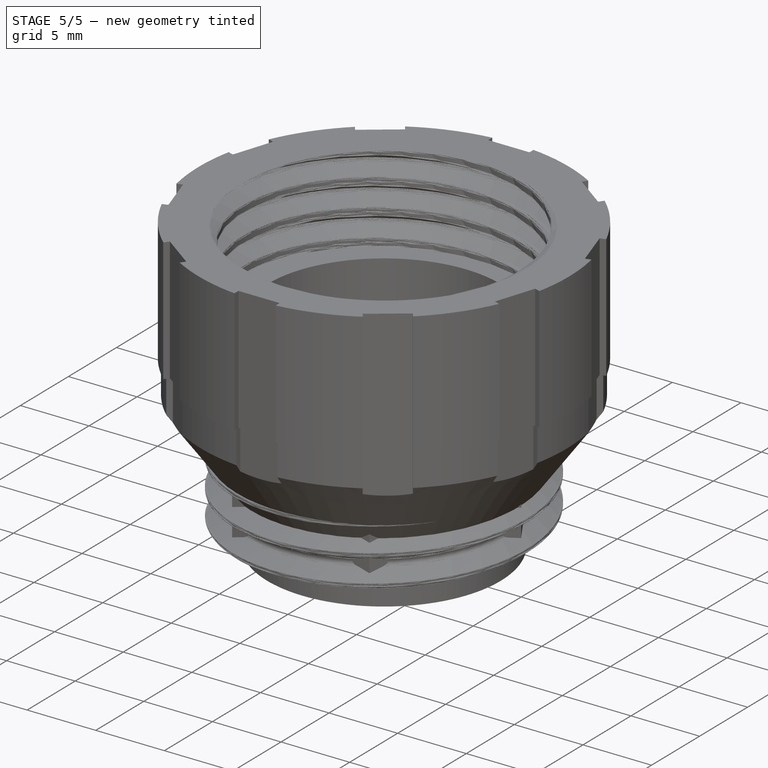
[diagram: stage 5 of 5 — iso view after this stage's code; geometry added in this stage tinted green]
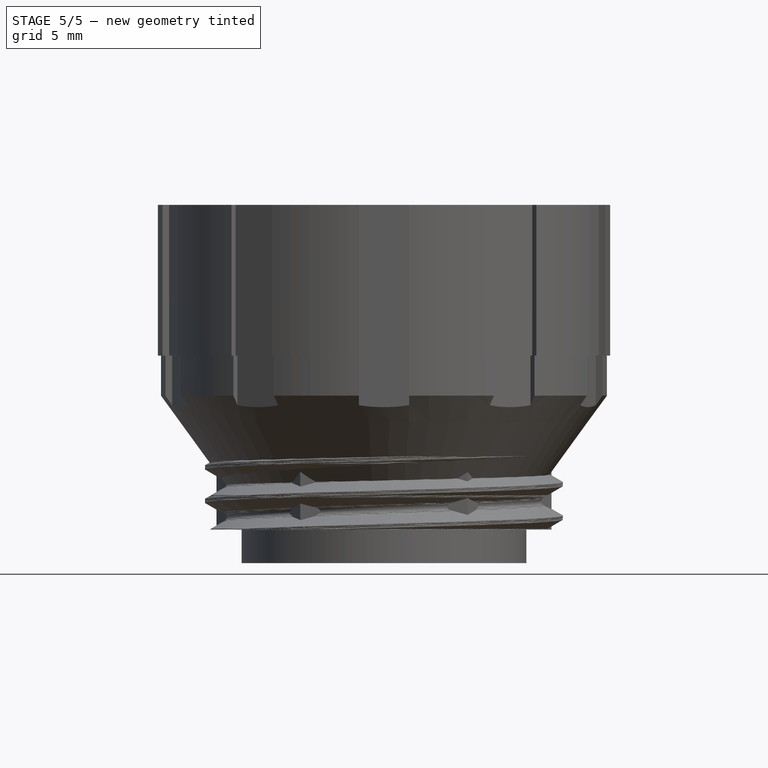
[diagram: stage 5 of 5 — front view after this stage's code; geometry added in this stage tinted green]
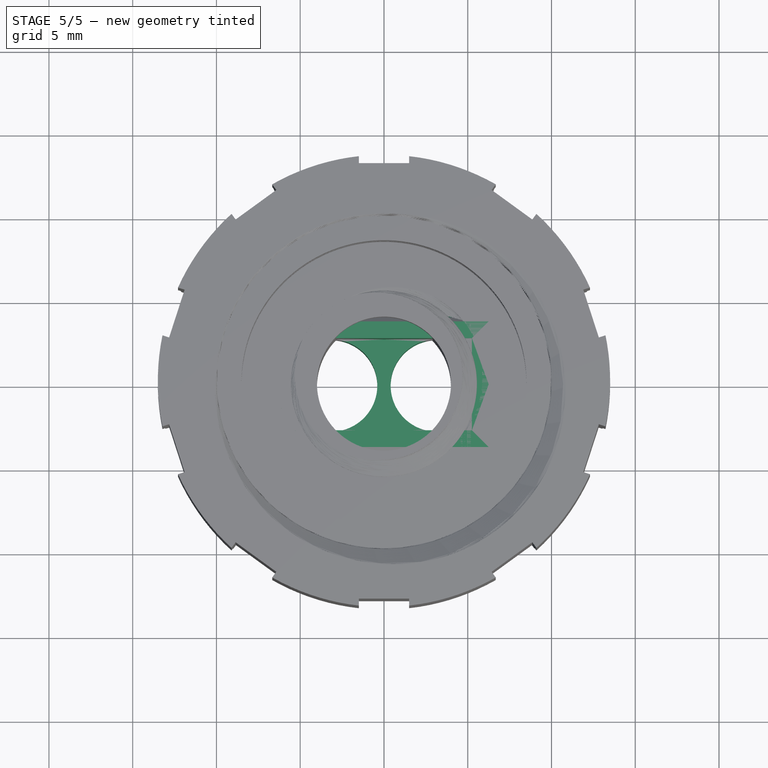
[diagram: stage 5 of 5 — top view after this stage's code; geometry added in this stage tinted green]
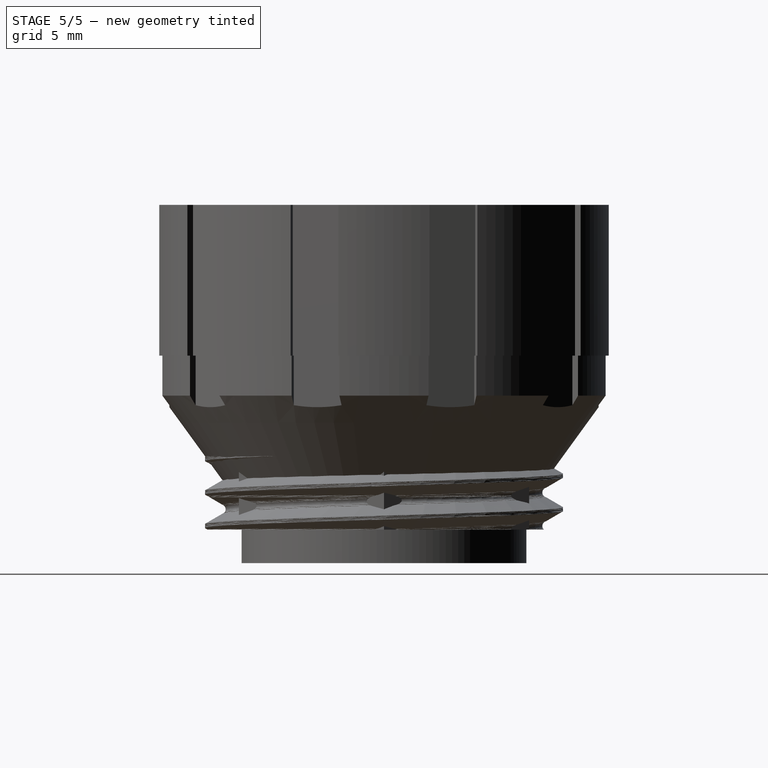
[diagram: stage 5 of 5 — right view after this stage's code; geometry added in this stage tinted green]
FEATURE [PartDesign::Pocket] Pocket
  BaseFeature = -> Thickness
  Direction = (0,0,-1)
  Length = 5
  Length2 = 5
  Profile = -> Thickness [Face13]
  Type = 0
FEATURE [Sketcher::SketchObject] Sketch001
  AttachmentOffset = pos=(0,0,-2) rot=(0,0,1;0rad)
  ExternalGeometry = -> [Pocket,Binder]
  FullyConstrained = true
  MapMode = 5
  Placement = pos=(0,0,-2) rot=(0,0,1;0rad)
  Support = -> [XY_Plane004]
  expr: .AttachmentOffset.Base.z = (<<Values>>.Z_Total_Height - <<Values>>.Pad_Height) * -1
  sketch-geometry (7):
    g0: ArcOfCircle CenterX=-3.15 CenterY=7e-16 CenterZ=0 NormalX=0 NormalY=0 NormalZ=1 AngleXU=0 Radius=2.75265 StartAngle=4.75631 EndAngle=7.81006
    g1: LineSegment StartX=-3.02915 StartY=2.75 StartZ=0 EndX=0 EndY=2.75 EndZ=0
    g2: LineSegment StartX=-3.02915 StartY=-2.75 StartZ=0 EndX=-2.31e-14 EndY=-2.75 EndZ=0
    g3: LineSegment StartX=0 StartY=2.75 StartZ=0 EndX=-2.31e-14 EndY=-2.75 EndZ=0
    g4: LineSegment StartX=3.02915 StartY=-2.75 StartZ=0 EndX=-2.31e-14 EndY=-2.75 EndZ=0
    g5: ArcOfCircle CenterX=3.15 CenterY=-2e-16 CenterZ=0 NormalX=0 NormalY=0 NormalZ=1 AngleXU=0 Radius=2.75265 StartAngle=1.61471 EndAngle=4.66847
    g6: LineSegment StartX=3.02915 StartY=2.75 StartZ=0 EndX=0 EndY=2.75 EndZ=0
  constraints (19):
    c: Coincident(g0,g-3)
    c: Coincident(g0,g-4)
    c: DistanceX(g0,g-1) = 3.15
    c: Coincident(g1,g0)
    c: PointOnObject(g1,g-2)
    c: Horizontal(g1)
    c: Coincident(g2,g0)
    c: Horizontal(g2)
    c: Equal(g2,g1)
    c: Coincident(g3,g1)
    c: Coincident(g3,g2)
    c: Coincident(g6,g5)
    c: Coincident(g4,g5)
    c: Equal(g4,g6)
    c: Coincident(g6,g1)
    c: Horizontal(g4)
    c: Coincident(g4,g2)
    c: Symmetric(g5,g0,g-2)
    c: Equal(g5,g0)
FEATURE [PartDesign::Pad] Pad001
  BaseFeature = -> Pocket
  Direction = (0,0,1)
  Length = 3.5
  Length2 = 10
  Profile = -> Sketch001
  ReferenceAxis = -> Sketch001 [N_Axis]
  Type = 0
  expr: Length = <<Values>>.Z_Total_Height - <<Values>>.Cutout_Height
FEATURE [Sketcher::SketchObject] Sketch002
  ExternalGeometry = -> [Pad001]
  FullyConstrained = false
  MapMode = 5
  Placement = pos=(-1.1567e-12,-4.75,0) rot=(1,0,0;1.5708rad)
  Support = -> [Pad001]
  sketch-geometry (6):
    g0: LineSegment StartX=-9.11593 StartY=2 StartZ=0 EndX=10.8841 EndY=2 EndZ=0
    g1: LineSegment StartX=-0.889575 StartY=-0.5 StartZ=0 EndX=5.11042 EndY=-0.5 EndZ=0
    g2: LineSegment StartX=5.11042 StartY=-0.5 StartZ=0 EndX=5.11042 EndY=-2 EndZ=0
    g3: LineSegment StartX=5.11042 StartY=-2 StartZ=0 EndX=-0.889575 EndY=-2 EndZ=0
    g4: LineSegment StartX=-0.889575 StartY=-2 StartZ=0 EndX=-0.889575 EndY=-0.5 EndZ=0
    g5: LineSegment StartX=2.11042 StartY=7 StartZ=0 EndX=2.11042 EndY=-3 EndZ=0
  constraints (17):
    c: DistanceX(g0,g0) = 20
    c: Symmetric(g-5,g-5,g0)
    c: Coincident(g1,g2)
    c: Coincident(g2,g3)
    c: Coincident(g3,g4)
    c: Coincident(g4,g1)
    c: Horizontal(g3)
    c: Vertical(g2)
    c: DistanceY(g4,g4) = 1.5
    c: DistanceX(g-3,g-3) = 10.2792
    c: Symmetric(g5,g5,g0)
    c: DistanceY(g5,g5) = 10
    c: Symmetric(g1,g1,g5)
    c: DistanceX(g1,g1) = 6
    c: Symmetric(g-3,g-5,g5)
    c: PointOnObject(g3,g-4)
    c: Vertical(g4)
FEATURE [PartDesign::Pad] Pad002
  BaseFeature = -> Pad001
  Direction = (-2.435e-13,-1,2e-16)
  Length = 1.5
  Length2 = 10
  Profile = -> Sketch002
  ReferenceAxis = -> Sketch002 [N_Axis]
  Type = 0
  expr: Length = <<Values>>.Handle_Height
FEATURE [PartDesign::Mirrored] Mirrored
  BaseFeature = -> Pad002
  MirrorPlane = -> XZ_Plane004
  Originals = -> [Pad002]
FEATURE [PartDesign::Chamfer] Chamfer
  Angle = 45
  Base = -> Mirrored [Edge114,Edge115,Edge113,Edge103,Edge102,Edge101]
  BaseFeature = -> Mirrored
  ChamferType = 0
  FlipDirection = false
  Size = 1
  Size2 = 1
  SupportTransform = false
  UseAllEdges = false
FEATURE [PartDesign::Chamfer] Chamfer001
  Angle = 45
  Base = -> Chamfer [Edge60,Edge42,Edge67,Edge61,Edge56,Edge40,Edge48,Edge50,Edge52,Edge54,Edge59,Edge62,Edge76,Edge69]
  BaseFeature = -> Chamfer
  ChamferType = 0
  FlipDirection = false
  Size = 1
  Size2 = 1
  SupportTransform = false
  UseAllEdges = false
FEATURE [PartDesign::Body] Body  label="Body_F"
  Group = -> [Binder,Sketch,Pad,Thickness,Pocket,Sketch001,Pad001,Sketch002,Pad002,Mirrored,Chamfer,Chamfer001]
  Origin = -> Origin004
  Placement = pos=(0,0,2) rot=(0,0,1;0rad)
  Tip = -> Chamfer001
  expr: .Placement.Base.z = <<Values>>.Wall_size
FEATURE [PartDesign::FeatureBase] Clone
  BaseFeature = -> Body
  Placement = pos=(0,0,2) rot=(0,0,1;0rad)
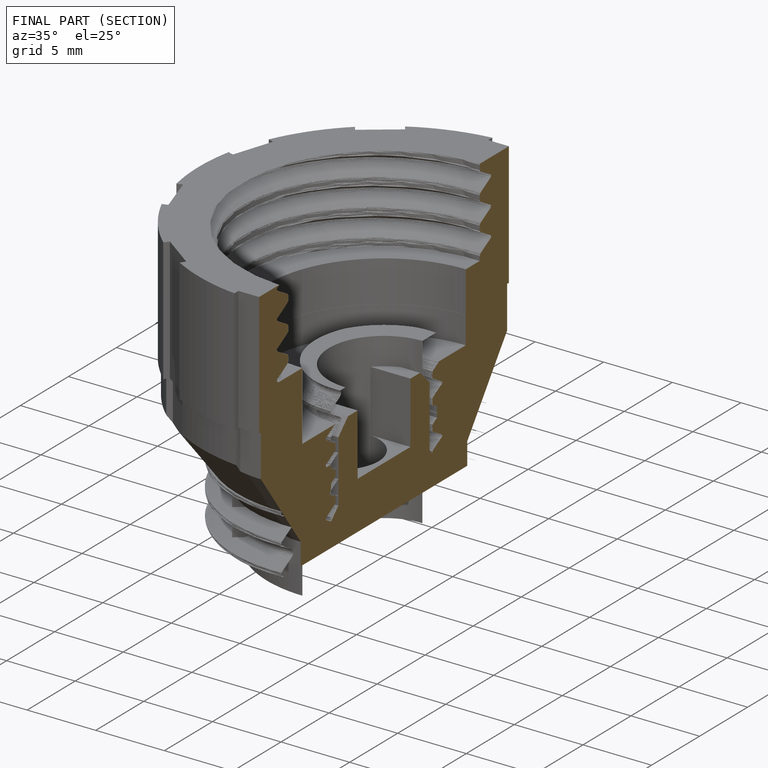
[diagram: finished part — half-section view (interior)]
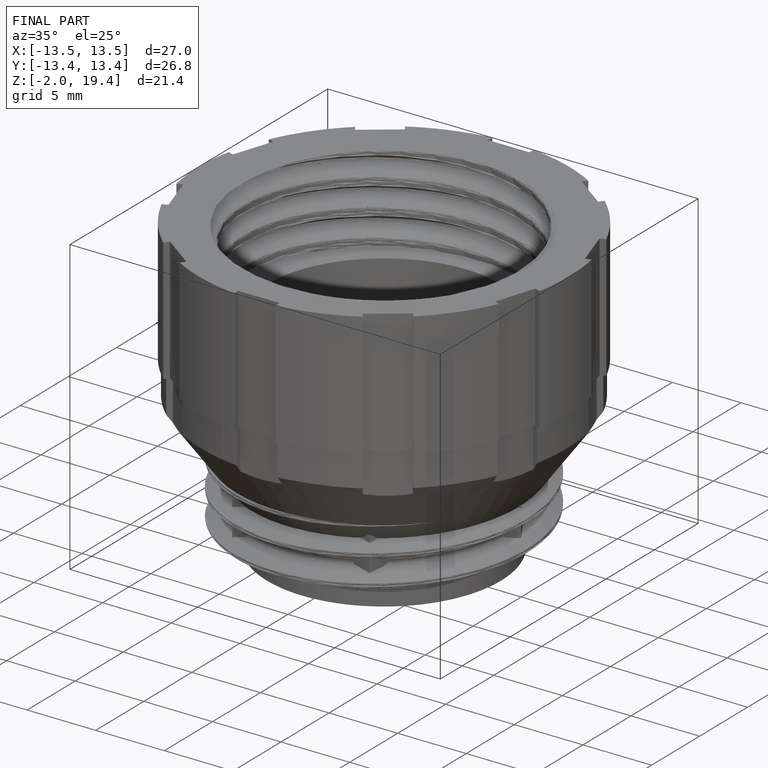
[diagram: finished part — iso view with bounding-box wireframe]
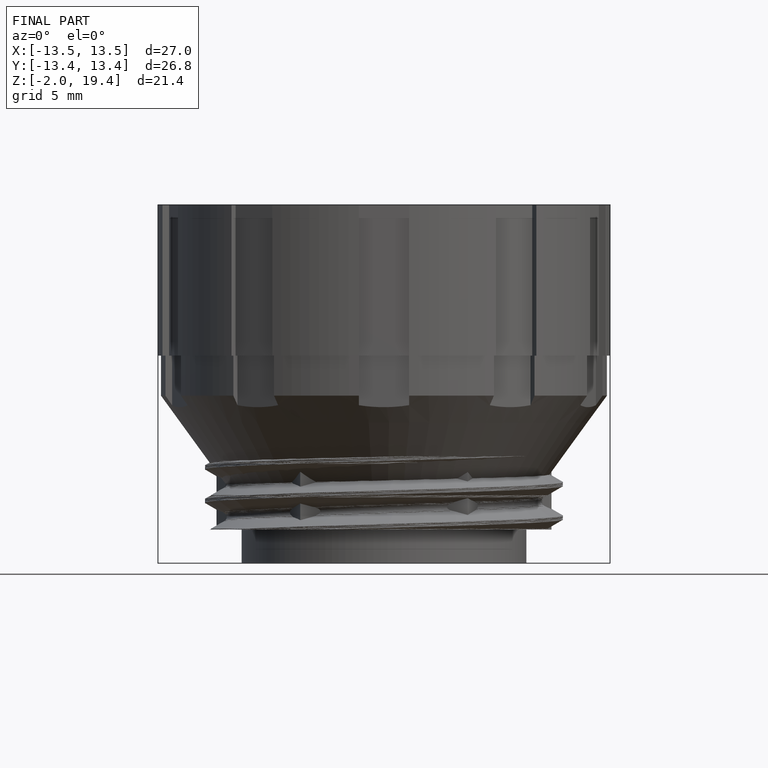
[diagram: finished part — front view with bounding-box wireframe]
